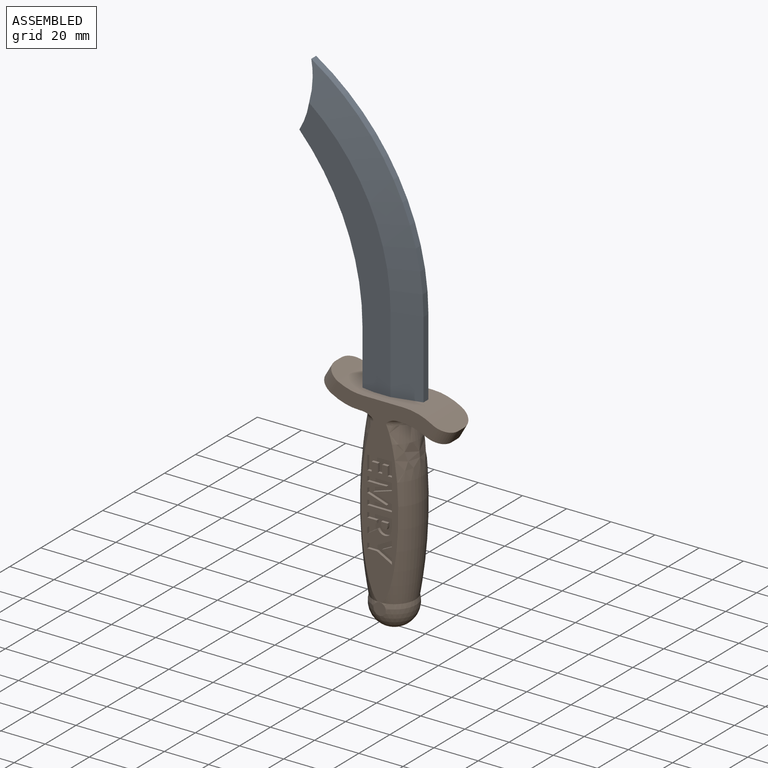
[diagram: assembled view]
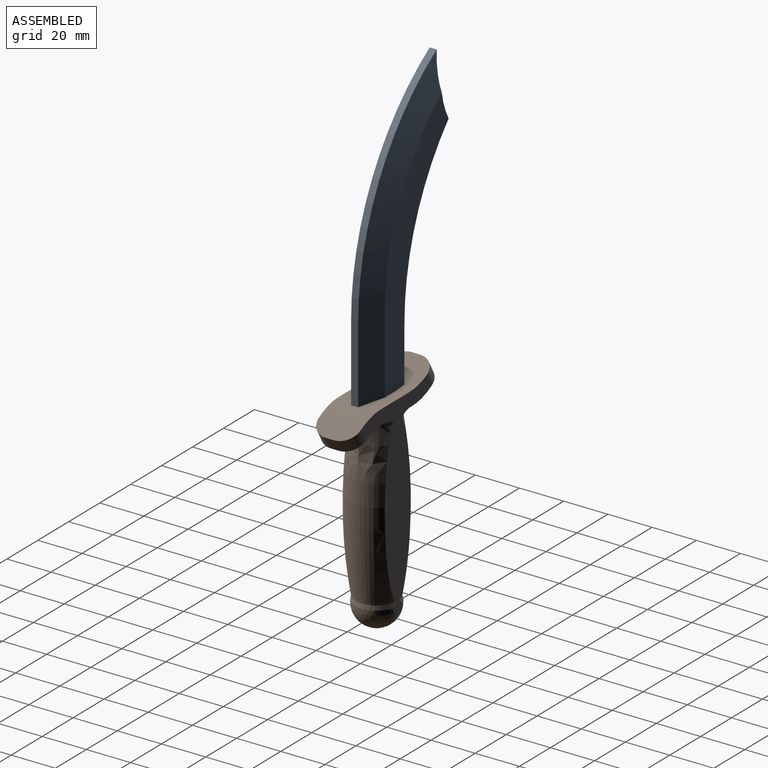
[diagram: assembled view, second angle]
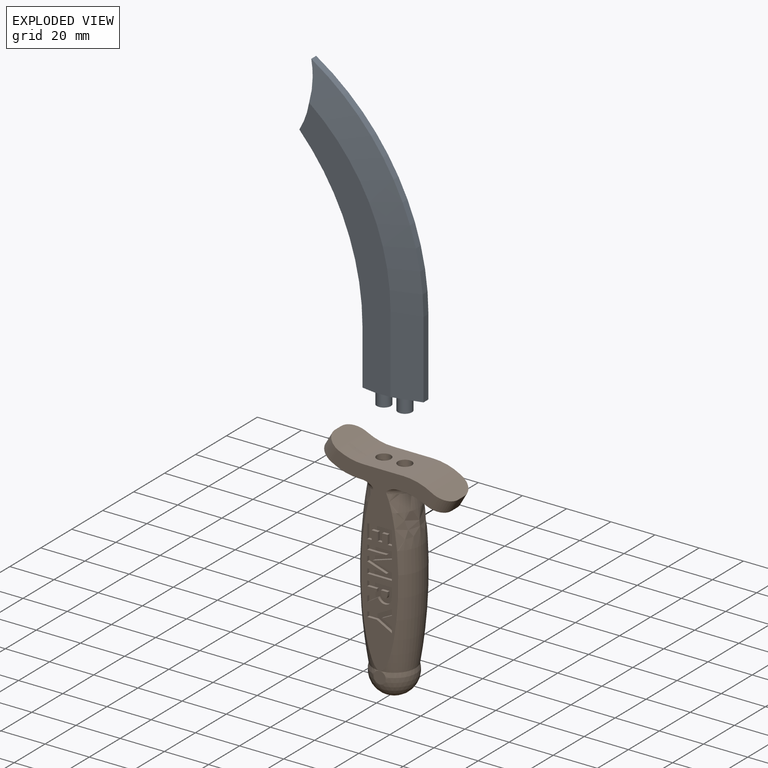
[diagram: exploded view]
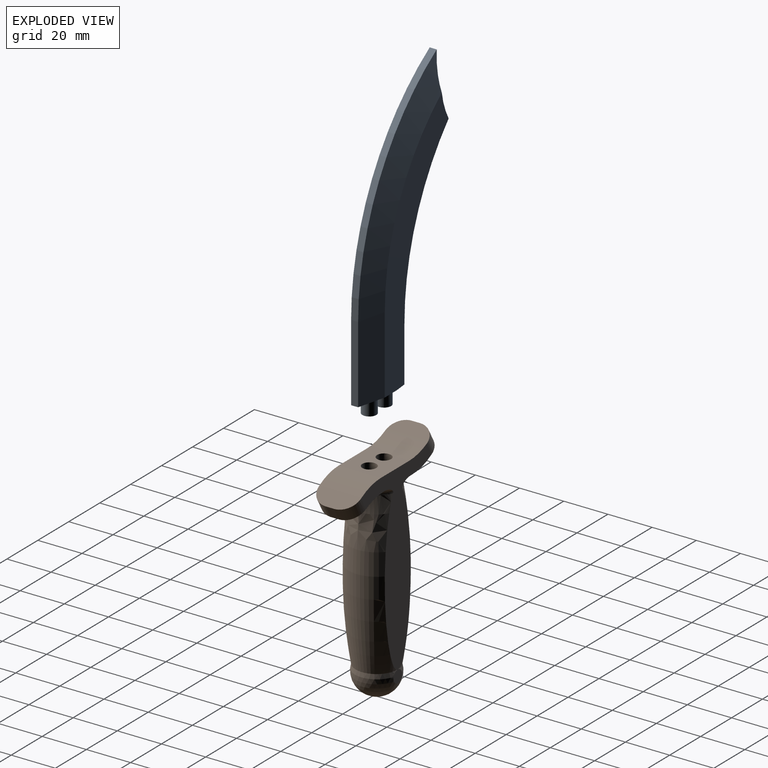
[diagram: exploded view, second angle]
ASSEMBLY  parts=2 mates=2
PART A: 17 faces, bbox 57.6x9.5x133.4 mm
  f0: plane 24.89x9.53mm, normal (-1,0,0), area 237.1mm2, adj f5,f6,f7,f16
  f1: plane 20.32x9.53mm, normal (0,0,-1), area 97.9mm2, adj f2,f6,f7,f9,f11,f12,f14,f16
  f2: plane 34.93x3.18mm, normal (1,0,0), area 110.9mm2, adj f1,f3,f9,f11
  f3: cylinder r=108.84mm len=92.08mm, axis (0,1,0), area 348.5mm2, adj f2,f4,f8,f10
  f4: cylinder r=34.92mm len=28.58mm, axis (0,1,0), area 226.8mm2, adj f3,f5,f6,f7,f8,f10
  f5: cylinder r=107.6mm len=73.03mm, axis (0,1,0), area 764.5mm2, adj f0,f4,f6,f7
  f6: plane 110.61x41.28mm, normal (0,-1,0), area 1528.9mm2, adj f0,f1,f4,f5,f8,f9,f16
  f7: plane 110.61x41.28mm, normal (0,1,0), area 1528.9mm2, adj f0,f1,f4,f5,f10,f11,f16
  f8: cone r=96.14mm half-angle=76deg, axis (0,1,0), area 1278.5mm2, adj f3,f4,f6,f9
  f9: plane 34.93x12.7mm, normal (0.24,-0.97,0), area 457.2mm2, adj f1,f2,f6,f8
  f10: cone r=108.84mm half-angle=76deg, axis (0,-1,0), area 1278.5mm2, adj f3,f4,f7,f11
  f11: plane 34.93x12.7mm, normal (0.24,0.97,0), area 457.2mm2, adj f1,f2,f7,f10
  f12: cylinder r=3.17mm len=6.54mm, axis (0,0,1), area 127.6mm2, adj f1,f13,f16
  f13: plane 6.35x6.35mm, normal (0,0,-1), area 31.7mm2, adj f12
  f14: cylinder r=3.17mm len=6.35mm, axis (0,0,1), area 126.7mm2, adj f1,f15
  f15: plane 6.35x6.35mm, normal (0,0,-1), area 31.7mm2, adj f14
  f16: plane 9.53x5.08mm, normal (-0.1,0,-1), area 40.6mm2, adj f0,f1,f6,f7,f12
PART B: 100 faces, bbox 29.6x58.9x101.8 mm
  f0: plane 85.26x45.65mm, normal (-1,0,0), area 1040.4mm2, adj f1,f2,f6,f7,f8,f9,f10,f11
  f1: revolved ~73.27x25.44mm, area 1657.1mm2, adj f0,f3,f74,f93,f94,f95
  f2: revolved ~73.27x25.44mm, area 1657.1mm2, adj f0,f3,f74,f90,f91,f92
  f3: sphere r=9.92mm, area 742.2mm2, adj f1,f2,f4,f5
  f4: plane 5.56x5.56mm, normal (1,0,0), area 24.2mm2, adj f3
  f5: plane 5.56x5.56mm, normal (-1,0,0), area 24.2mm2, adj f3
  f6: plane 2.16x1.27mm, normal (0,-1,0), area 2.7mm2, adj f0,f7,f24,f25
  f7: plane 8.71x2.87mm, normal (0,-0.31,0.95), area 11.7mm2, adj f0,f6,f8,f25
  f8: plane 1.27x0.07mm, normal (0,-1,0), area 0.1mm2, adj f0,f7,f9,f25
  f9: extruded ~2.59x1.27mm, area 3.3mm2, adj f0,f8,f10,f25
  f10: extruded ~1.27x0.86mm, area 1.1mm2, adj f0,f9,f11,f25
  f11: plane 5.27x1.27mm, normal (0,0,-1), area 6.7mm2, adj f0,f10,f12,f25
  f12: plane 2.2x1.27mm, normal (0,-1,0), area 2.8mm2, adj f0,f11,f13,f25
  f13: plane 11.13x1.27mm, normal (0,0,1), area 14.1mm2, adj f0,f12,f14,f25
  f14: plane 3.21x1.27mm, normal (0,1,0), area 4.1mm2, adj f0,f13,f15,f25
  f15: plane 8.51x2.79mm, normal (0,0.31,-0.95), area 11.4mm2, adj f0,f14,f16,f25
  f16: plane 1.27x0.05mm, normal (0,1,0), area 0.1mm2, adj f0,f15,f17,f25
  f17: plane 8.51x2.63mm, normal (0,0.3,0.96), area 11.3mm2, adj f0,f16,f18,f25
  f18: plane 3.21x1.27mm, normal (0,1,0), area 4.1mm2, adj f0,f17,f19,f25
  f19: plane 11.13x1.27mm, normal (0,0,-1), area 14.1mm2, adj f0,f18,f20,f25
  f20: plane 2.11x1.27mm, normal (0,-1,0), area 2.7mm2, adj f0,f19,f21,f25
  f21: plane 5.18x1.27mm, normal (0,0,1), area 6.6mm2, adj f0,f20,f22,f25
  f22: extruded ~3.55x1.27mm, area 4.5mm2, adj f0,f21,f23,f25
  f23: plane 1.27x0.07mm, normal (0,-1,0), area 0.1mm2, adj f0,f22,f24,f25
  f24: plane 8.73x2.68mm, normal (0,-0.29,-0.96), area 11.6mm2, adj f0,f6,f23,f25
  f25: plane 11.89x11.13mm, normal (-1,0,0), area 85.4mm2, adj f6,f7,f8,f9,f10,f11,f12,f13
  f26: plane 4.58x2.31mm, normal (0,0.45,0.89), area 6.5mm2, adj f0,f27,f34,f35
  f27: plane 2.56x1.27mm, normal (0,1,0), area 3.2mm2, adj f0,f26,f28,f35
  f28: plane 6.87x3.69mm, normal (0,-0.47,-0.88), area 9.9mm2, adj f0,f27,f29,f35
  f29: plane 4.25x1.27mm, normal (0,0,-1), area 5.4mm2, adj f0,f28,f30,f35
  f30: plane 2.34x1.27mm, normal (0,-1,0), area 3mm2, adj f0,f29,f31,f35
  f31: plane 4.33x1.27mm, normal (0,0,1), area 5.5mm2, adj f0,f30,f32,f35
  f32: plane 6.8x3.69mm, normal (0,-0.48,0.88), area 9.8mm2, adj f0,f31,f33,f35
  f33: plane 2.54x1.27mm, normal (0,1,0), area 3.2mm2, adj f0,f32,f34,f35
  f34: plane 4.58x2.32mm, normal (0,0.45,-0.89), area 6.5mm2, adj f0,f26,f33,f35
  f35: plane 11.13x9.73mm, normal (-1,0,0), area 40.7mm2, adj f26,f27,f28,f29,f30,f31,f32,f33
  f36: plane 3.01x1.27mm, normal (0,0,1), area 3.8mm2, adj f37,f54,f55,f69
  f37: plane 1.27x0.72mm, normal (0,-1,0), area 0.9mm2, adj f36,f38,f55,f69
  f38: extruded ~1.68x1.27mm, area 2.2mm2, adj f37,f39,f55,f69
  f39: extruded ~1.27x1.13mm, area 1.7mm2, adj f38,f40,f55,f69
  f40: extruded ~1.27x1.17mm, area 1.7mm2, adj f39,f41,f55,f69
  f41: extruded ~1.65x1.27mm, area 2.2mm2, adj f40,f54,f55,f69
  f42: plane 1.27x1.25mm, normal (0,-1,0), area 1.6mm2, adj f0,f43,f53,f55
  f43: plane 4.27x2.66mm, normal (0,-0.53,-0.85), area 6.4mm2, adj f0,f42,f44,f55
  f44: plane 2.62x1.27mm, normal (0,-1,0), area 3.3mm2, adj f0,f43,f45,f55
  f45: extruded ~4.85x3.27mm, area 7.4mm2, adj f0,f44,f46,f55
  f46: extruded ~1.53x1.27mm, area 2.5mm2, adj f0,f45,f47,f55
  f47: extruded ~1.75x1.27mm, area 2.4mm2, adj f0,f46,f48,f55
  f48: extruded ~2.51x1.27mm, area 3.6mm2, adj f0,f47,f49,f55
  f49: extruded ~3.36x1.27mm, area 4.5mm2, adj f0,f48,f50,f55
  f50: plane 3.24x1.27mm, normal (0,1,0), area 4.1mm2, adj f0,f49,f51,f55
  f51: plane 11.13x1.27mm, normal (0,0,-1), area 14.1mm2, adj f0,f50,f52,f55
  f52: plane 2.36x1.27mm, normal (0,-1,0), area 3mm2, adj f0,f51,f53,f55
  f53: plane 4.27x1.27mm, normal (0,0,1), area 5.4mm2, adj f0,f42,f52,f55
  f54: plane 1.27x0.76mm, normal (0,1,0), area 1mm2, adj f36,f41,f55,f69
  f55: plane 11.13x8.89mm, normal (-1,0,0), area 60.5mm2, adj f36,f37,f38,f39,f40,f41,f42,f43
  f56: plane 1.95x1.27mm, normal (0,0,1), area 2.5mm2, adj f0,f57,f67,f68
  f57: plane 4.05x1.27mm, normal (0,1,0), area 5.1mm2, adj f0,f56,f58,f68
  f58: plane 2.87x1.27mm, normal (0,0,1), area 3.6mm2, adj f0,f57,f59,f68
  f59: plane 3.77x1.27mm, normal (0,-1,0), area 4.8mm2, adj f0,f58,f60,f68
  f60: plane 1.93x1.27mm, normal (0,0,1), area 2.5mm2, adj f0,f59,f61,f68
  f61: plane 3.77x1.27mm, normal (0,1,0), area 4.8mm2, adj f0,f60,f62,f68
  f62: plane 2.44x1.27mm, normal (0,0,1), area 3.1mm2, adj f0,f61,f63,f68
  f63: plane 4.05x1.27mm, normal (0,-1,0), area 5.1mm2, adj f0,f62,f64,f68
  f64: plane 1.93x1.27mm, normal (0,0,1), area 2.5mm2, adj f0,f63,f65,f68
  f65: plane 6.41x1.27mm, normal (0,1,0), area 8.1mm2, adj f0,f64,f66,f68
  f66: plane 11.13x1.27mm, normal (0,0,-1), area 14.1mm2, adj f0,f65,f67,f68
  f67: plane 6.41x1.27mm, normal (0,-1,0), area 8.1mm2, adj f0,f56,f66,f68
  f68: plane 11.13x6.41mm, normal (-1,0,0), area 49.3mm2, adj f56,f57,f58,f59,f60,f61,f62,f63
  f69: plane 3.01x2.94mm, normal (-1,0,0), area 7.8mm2, adj f36,f37,f38,f39,f40,f41,f54
  f70: cylinder r=25.4mm len=19.05mm, axis (-1,0,0), area 207.3mm2, adj f0,f72,f74,f76,f77,f86,f88,f91
  f71: plane 0.96x0.91mm, normal (0,0,-1), area 0.4mm2, adj f0,f75,f95
  f72: plane 0.96x0.91mm, normal (0,0,-1), area 0.4mm2, adj f0,f70,f92
  f73: plane 0.96x0.91mm, normal (0,0,-1), area 0.4mm2, adj f74,f75,f93
  f74: plane 85.26x45.65mm, normal (1,0,0), area 1284.6mm2, adj f1,f2,f70,f73,f75,f76,f79,f80
  f75: cylinder r=25.4mm len=19.05mm, axis (-1,0,0), area 216.5mm2, adj f0,f71,f73,f74,f83,f94
  f76: plane 0.96x0.91mm, normal (0,0,-1), area 0.4mm2, adj f70,f74,f90
  f77: plane 18.77x5.33mm, normal (0,0.5,-0.87), area 92.5mm2, adj f70,f78,f86,f88
  f78: plane 5.5x3.81mm, normal (0,-0.87,-0.5), area 24.2mm2, adj f77,f79,f86,f88
  f79: plane 19.05x6.81mm, normal (0,-0.5,0.87), area 124.8mm2, adj f0,f74,f78,f80,f86,f88
  f80: cylinder r=25.4mm len=19.05mm, axis (-1,0,0), area 253.4mm2, adj f0,f74,f79,f81
  f81: plane 19.05x18.14mm, normal (0,0,1), area 283.6mm2, adj f0,f74,f80,f82,f96,f98
  f82: cylinder r=25.4mm len=19.05mm, axis (-1,0,0), area 251.7mm2, adj f0,f74,f81,f84,f87,f89,f96
  f83: plane 19.05x6.81mm, normal (0,0.5,-0.87), area 124.8mm2, adj f0,f74,f75,f85,f87,f89
  f84: plane 18.77x5.33mm, normal (0,-0.5,0.87), area 92.5mm2, adj f82,f85,f87,f89
  f85: plane 5.5x3.81mm, normal (0,0.87,0.5), area 24.2mm2, adj f83,f84,f87,f89
  f86: cylinder r=7.62mm len=9.8mm, axis (0,-0.5,0.87), area 76mm2, adj f70,f74,f77,f78,f79
  f87: cylinder r=7.62mm len=9.8mm, axis (0,0.5,-0.87), area 76mm2, adj f74,f82,f83,f84,f85
  f88: cylinder r=7.62mm len=9.8mm, axis (0,-0.5,0.87), area 76mm2, adj f0,f70,f77,f78,f79
  f89: cylinder r=7.62mm len=9.8mm, axis (0,0.5,-0.87), area 76mm2, adj f0,f82,f83,f84,f85
  f90: torus R=12.51mm, axis (0,0,-1), area 15.9mm2, adj f2,f74,f76,f91
  f91: bspline ~18.45x6.86mm, area 76.8mm2, adj f2,f70,f90,f92
  f92: torus R=12.51mm, axis (0,0,-1), area 15.9mm2, adj f0,f2,f72,f91
  f93: torus R=12.51mm, axis (0,0,-1), area 15.9mm2, adj f1,f73,f74,f94
  f94: bspline ~19.36x6.58mm, area 68.3mm2, adj f1,f75,f93,f95
  f95: torus R=12.51mm, axis (0,0,-1), area 15.9mm2, adj f0,f1,f71,f94
  f96: cylinder r=3.17mm len=6.35mm, axis (0,0,1), area 63.3mm2, adj f81,f82,f97
  f97: plane 6.35x6.35mm, normal (0,0,1), area 31.7mm2, adj f96
  f98: cylinder r=3.17mm len=6.35mm, axis (0,0,1), area 63.3mm2, adj f81,f99
  f99: plane 6.35x6.35mm, normal (0,0,1), area 31.7mm2, adj f98
PLACE A t=(6.35,4.76,50.8)mm
PLACE B rot(axis=(0,0,1),90deg) t=(4.76,4.76,6.35)mm
MATE cylindrical A.f12 <-> B.f96  axis (0,0,-1) through (0,4.76,44.45)mm
MATE cylindrical B.f98 <-> A.f14  axis (0,0,1) through (9.53,4.76,47.62)mm
